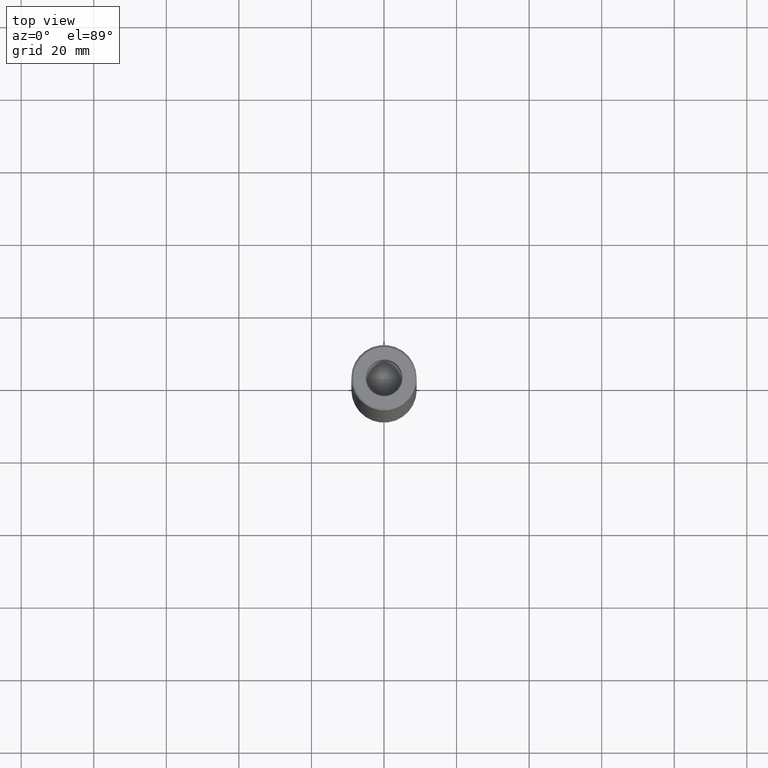
[diagram: clean part render]
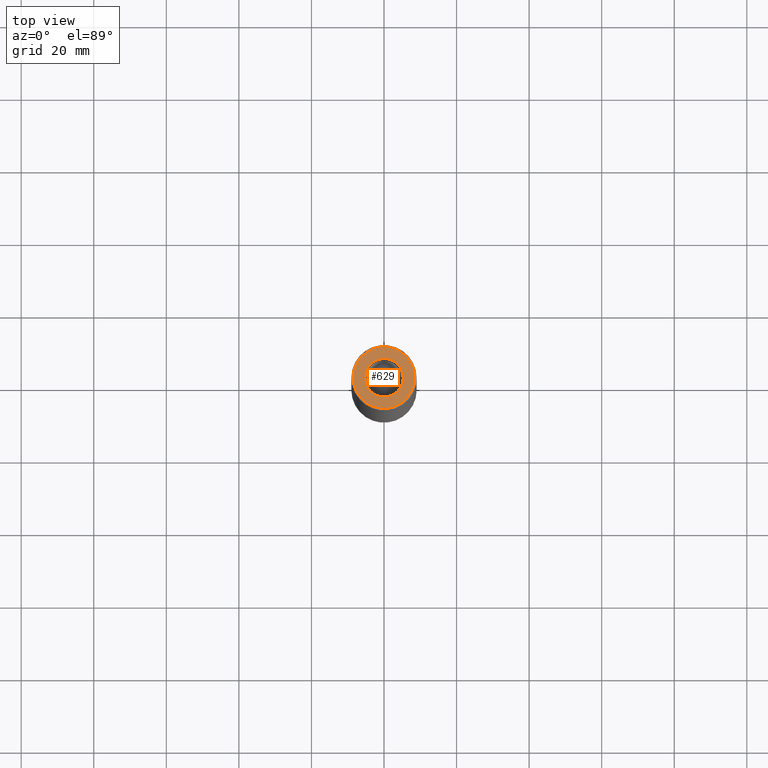
[diagram: same view with one face highlighted and labeled with its STEP entity id]
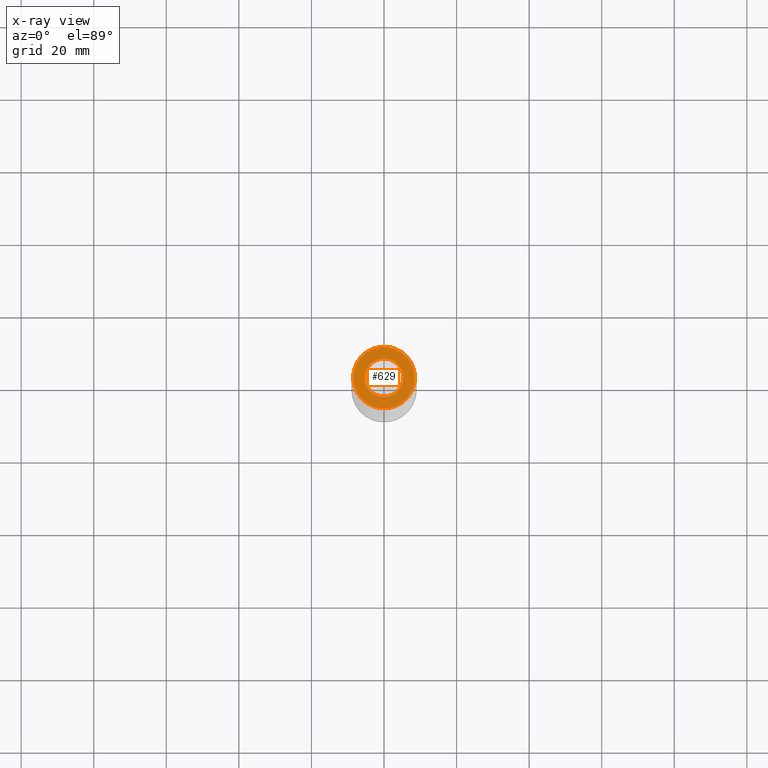
[diagram: x-ray of the same camera — body ghosted, the highlighted face saturated]
A machine part, top view. The second image highlights one B-rep face of the part: STEP entity #629.
The next image is the same camera in x-ray: the body ghosted, the highlighted face saturated — about 0% of this face is hidden behind the body in this view.
In plain terms, the highlighted planar face has unit normal (0, -0, 1).
Its self-contained STEP definition (entity closure, byte-faithful):
#3 = EDGE_CURVE ( 'NONE', #316, #88, #333, .T. ) ;
#12 = PLANE ( 'NONE',  #124 ) ;
#39 = CARTESIAN_POINT ( 'NONE',  ( -8.500000000000007105, 0.000000000000000000, 0.000000000000000000 ) ) ;
#42 = VERTEX_POINT ( 'NONE', #39 ) ;
#44 = CARTESIAN_POINT ( 'NONE',  ( 8.500000000000007105, 1.071565949253934321E-15, 0.000000000000000000 ) ) ;
#73 = AXIS2_PLACEMENT_3D ( 'NONE', #350, #301, #76 ) ;
#76 = DIRECTION ( 'NONE',  ( 1.000000000000000000, 0.000000000000000000, 0.000000000000000000 ) ) ;
#88 = VERTEX_POINT ( 'NONE', #98 ) ;
#98 = CARTESIAN_POINT ( 'NONE',  ( 5.299999999999997158, 0.000000000000000000, 0.000000000000000000 ) ) ;
#113 = CARTESIAN_POINT ( 'NONE',  ( 0.000000000000000000, 0.000000000000000000, 0.000000000000000000 ) ) ;
#124 = AXIS2_PLACEMENT_3D ( 'NONE', #612, #405, #160 ) ;
#133 = DIRECTION ( 'NONE',  ( -0.000000000000000000, -0.000000000000000000, 1.000000000000000000 ) ) ;
#139 = EDGE_LOOP ( 'NONE', ( #520, #576 ) ) ;
#155 = CIRCLE ( 'NONE', #562, 8.500000000000007105 ) ;
#160 = DIRECTION ( 'NONE',  ( 1.000000000000000000, 0.000000000000000000, 0.000000000000000000 ) ) ;
#163 = CARTESIAN_POINT ( 'NONE',  ( -5.299999999999997158, 6.490628035480969952E-16, 0.000000000000000000 ) ) ;
#175 = ORIENTED_EDGE ( 'NONE', *, *, #3, .T. ) ;
#202 = VERTEX_POINT ( 'NONE', #44 ) ;
#225 = CARTESIAN_POINT ( 'NONE',  ( 0.000000000000000000, 0.000000000000000000, 0.000000000000000000 ) ) ;
#301 = DIRECTION ( 'NONE',  ( 0.000000000000000000, 0.000000000000000000, -1.000000000000000000 ) ) ;
#316 = VERTEX_POINT ( 'NONE', #163 ) ;
#325 = EDGE_CURVE ( 'NONE', #202, #42, #155, .T. ) ;
#333 = CIRCLE ( 'NONE', #385, 5.299999999999997158 ) ;
#342 = CIRCLE ( 'NONE', #379, 8.500000000000007105 ) ;
#350 = CARTESIAN_POINT ( 'NONE',  ( 0.000000000000000000, 0.000000000000000000, 0.000000000000000000 ) ) ;
#363 = FACE_BOUND ( 'NONE', #399, .T. ) ;
#370 = CARTESIAN_POINT ( 'NONE',  ( 0.000000000000000000, 0.000000000000000000, 0.000000000000000000 ) ) ;
#379 = AXIS2_PLACEMENT_3D ( 'NONE', #113, #615, #525 ) ;
#385 = AXIS2_PLACEMENT_3D ( 'NONE', #370, #424, #532 ) ;
#395 = CIRCLE ( 'NONE', #73, 5.299999999999997158 ) ;
#399 = EDGE_LOOP ( 'NONE', ( #602, #175 ) ) ;
#405 = DIRECTION ( 'NONE',  ( 0.000000000000000000, -0.000000000000000000, 1.000000000000000000 ) ) ;
#424 = DIRECTION ( 'NONE',  ( 0.000000000000000000, 0.000000000000000000, -1.000000000000000000 ) ) ;
#469 = EDGE_CURVE ( 'NONE', #42, #202, #342, .T. ) ;
#520 = ORIENTED_EDGE ( 'NONE', *, *, #469, .T. ) ;
#525 = DIRECTION ( 'NONE',  ( 1.000000000000000000, 0.000000000000000000, 0.000000000000000000 ) ) ;
#527 = DIRECTION ( 'NONE',  ( 1.000000000000000000, 0.000000000000000000, 0.000000000000000000 ) ) ;
#532 = DIRECTION ( 'NONE',  ( 1.000000000000000000, 0.000000000000000000, 0.000000000000000000 ) ) ;
#559 = FACE_OUTER_BOUND ( 'NONE', #139, .T. ) ;
#562 = AXIS2_PLACEMENT_3D ( 'NONE', #225, #133, #527 ) ;
#576 = ORIENTED_EDGE ( 'NONE', *, *, #325, .T. ) ;
#595 = EDGE_CURVE ( 'NONE', #88, #316, #395, .T. ) ;
#602 = ORIENTED_EDGE ( 'NONE', *, *, #595, .T. ) ;
#612 = CARTESIAN_POINT ( 'NONE',  ( 0.000000000000000000, 0.000000000000000000, 0.000000000000000000 ) ) ;
#615 = DIRECTION ( 'NONE',  ( -0.000000000000000000, -0.000000000000000000, 1.000000000000000000 ) ) ;
#629 = ADVANCED_FACE ( 'NONE', ( #363, #559 ), #12, .T. ) ;